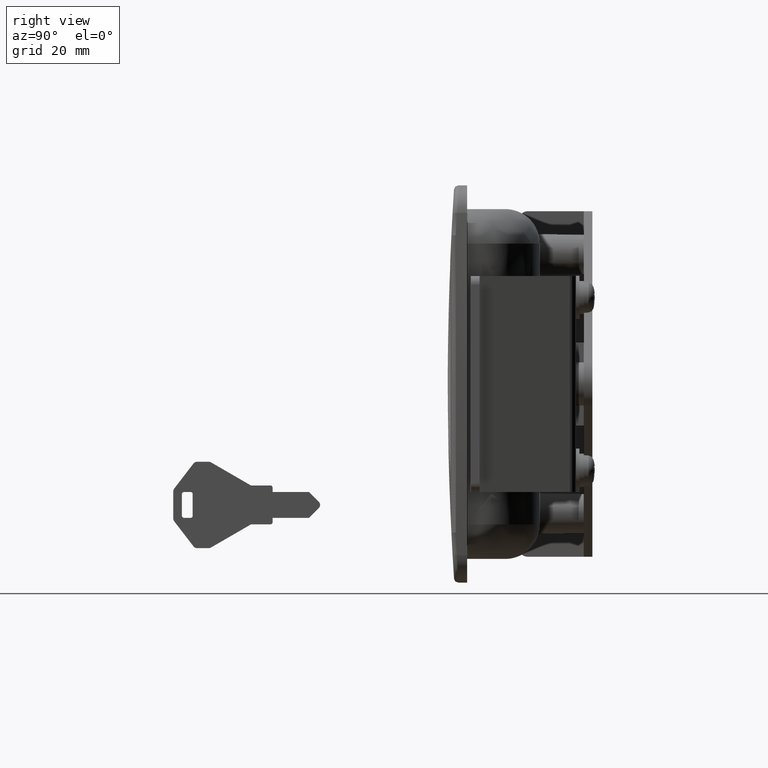
[diagram: clean part render]
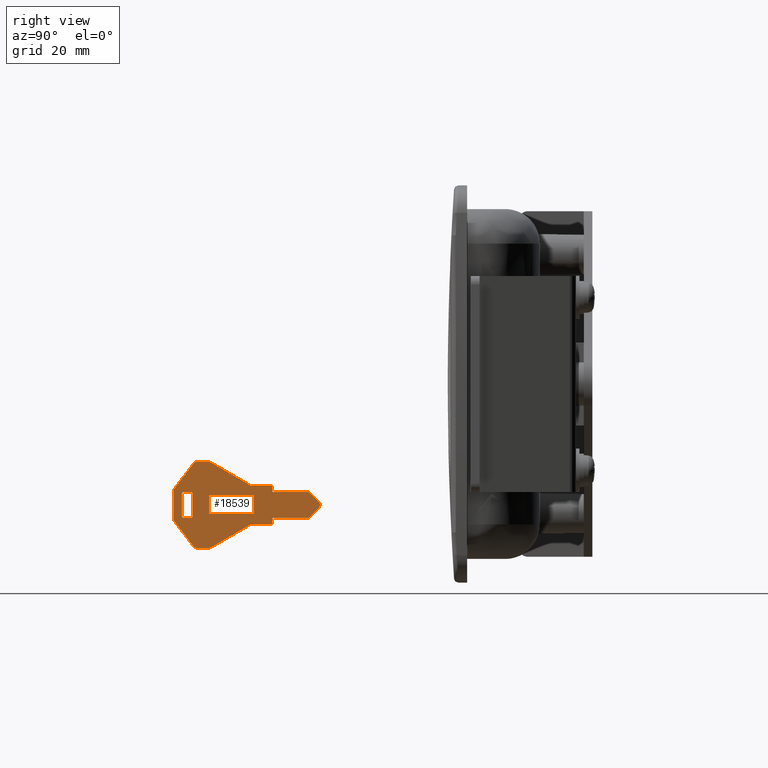
[diagram: same view with one face highlighted and labeled with its STEP entity id]
A machine part, right view. The second image highlights one B-rep face of the part: STEP entity #18539.
In plain terms, the highlighted face is a freeform B-spline surface patch.
Its self-contained STEP definition (entity closure, byte-faithful):
#18255=CARTESIAN_POINT('',(-2.050000000000105,-98.752650437355072,-17.001000038763880));
#18256=CARTESIAN_POINT('',(-2.050000000000105,-61.356083053201090,-17.001000038763880));
#18257=CARTESIAN_POINT('',(-2.050000000000105,-98.752650437355072,-38.999000497677919));
#18258=CARTESIAN_POINT('',(-2.050000000000105,-61.356083053201090,-38.999000497677919));
#18259=B_SPLINE_SURFACE_WITH_KNOTS('',1,1,((#18255,#18257),(#18256,#18258)),.UNSPECIFIED.,.F.,.F.,.U.,(2,2),(2,2),(0.0,37.396567384153983),(0.0,21.998000458914039),.UNSPECIFIED.);
#18260=CARTESIAN_POINT('',(-2.050000000000105,-88.299642658539398,-18.147855169568800));
#18261=VERTEX_POINT('',#18260);
#18262=CARTESIAN_POINT('',(-2.050000000000105,-88.822948676056399,-18.0));
#18263=VERTEX_POINT('',#18262);
#18264=CARTESIAN_POINT('',(-2.050000000000105,-88.299642658539398,-18.147855169568800));
#18265=CARTESIAN_POINT('',(-2.050000000000110,-88.455957832519616,-18.051432423881309));
#18266=CARTESIAN_POINT('',(-2.050000000000103,-88.639315661924797,-17.999747480380851));
#18267=CARTESIAN_POINT('',(-2.050000000000105,-88.822948676056399,-18.0));
#18268=B_SPLINE_CURVE_WITH_KNOTS('',3,(#18264,#18265,#18266,#18267),.UNSPECIFIED.,.F.,.U.,(4,4),(0.000000029010356,0.550753165426561),.UNSPECIFIED.);
#18269=EDGE_CURVE('',#18261,#18263,#18268,.T.);
#18270=ORIENTED_EDGE('',*,*,#18269,.T.);
#18271=CARTESIAN_POINT('',(-2.050000000000105,-91.561948676056389,-18.0));
#18272=VERTEX_POINT('',#18271);
#18273=CARTESIAN_POINT('',(-2.050000000000105,-88.822948676056399,-18.0));
#18274=CARTESIAN_POINT('',(-2.050000000000105,-91.561948676056389,-18.0));
#18275=QUASI_UNIFORM_CURVE('',1,(#18273,#18274),.UNSPECIFIED.,.F.,.U.);
#18276=EDGE_CURVE('',#18263,#18272,#18275,.T.);
#18277=ORIENTED_EDGE('',*,*,#18276,.T.);
#18278=CARTESIAN_POINT('',(-2.050000000000105,-92.372545806396488,-18.414395788706699));
#18279=VERTEX_POINT('',#18278);
#18280=CARTESIAN_POINT('',(-2.050000000000105,-91.561948676056389,-18.0));
#18281=CARTESIAN_POINT('',(-2.050000000000106,-91.729398766783262,-17.999613703292820));
#18282=CARTESIAN_POINT('',(-2.050000000000101,-92.043991722289093,-18.081125507935500));
#18283=CARTESIAN_POINT('',(-2.050000000000110,-92.286225528645971,-18.294508677168469));
#18284=CARTESIAN_POINT('',(-2.050000000000105,-92.372545806396488,-18.414395788706699));
#18285=B_SPLINE_CURVE_WITH_KNOTS('',3,(#18280,#18281,#18282,#18283,#18284),.UNSPECIFIED.,.F.,.U.,(4,1,4),(0.000000110270843,0.502119738241310,0.945205424779409),.UNSPECIFIED.);
#18286=EDGE_CURVE('',#18272,#18279,#18285,.T.);
#18287=ORIENTED_EDGE('',*,*,#18286,.T.);
#18288=CARTESIAN_POINT('',(-2.050000000000105,-96.864945806396605,-24.254395788706749));
#18289=VERTEX_POINT('',#18288);
#18290=CARTESIAN_POINT('',(-2.050000000000105,-92.372545806396488,-18.414395788706699));
#18291=CARTESIAN_POINT('',(-2.050000000000105,-96.864945806396605,-24.254395788706749));
#18292=QUASI_UNIFORM_CURVE('',1,(#18290,#18291),.UNSPECIFIED.,.F.,.U.);
#18293=EDGE_CURVE('',#18279,#18289,#18292,.T.);
#18294=ORIENTED_EDGE('',*,*,#18293,.T.);
#18295=CARTESIAN_POINT('',(-2.050000000000105,-97.054348676056406,-24.840000000000000));
#18296=VERTEX_POINT('',#18295);
#18297=CARTESIAN_POINT('',(-2.050000000000105,-96.864945806396605,-24.254395788706749));
#18298=CARTESIAN_POINT('',(-2.050000000000105,-96.933726562449806,-24.349437920039779));
#18299=CARTESIAN_POINT('',(-2.050000000000109,-97.025604830563807,-24.540235992030059));
#18300=CARTESIAN_POINT('',(-2.050000000000102,-97.054379700925182,-24.748758941509791));
#18301=CARTESIAN_POINT('',(-2.050000000000105,-97.054348676056406,-24.840000000000000));
#18302=B_SPLINE_CURVE_WITH_KNOTS('',3,(#18297,#18298,#18299,#18300,#18301),.UNSPECIFIED.,.F.,.U.,(4,1,4),(0.000000027121419,0.351936498225576,0.625665077524661),.UNSPECIFIED.);
#18303=EDGE_CURVE('',#18289,#18296,#18302,.T.);
#18304=ORIENTED_EDGE('',*,*,#18303,.T.);
#18305=CARTESIAN_POINT('',(-2.050000000000105,-97.054348676056406,-31.160000000000000));
#18306=VERTEX_POINT('',#18305);
#18307=CARTESIAN_POINT('',(-2.050000000000105,-97.054348676056406,-24.840000000000000));
#18308=CARTESIAN_POINT('',(-2.050000000000105,-97.054348676056406,-31.160000000000000));
#18309=QUASI_UNIFORM_CURVE('',1,(#18307,#18308),.UNSPECIFIED.,.F.,.U.);
#18310=EDGE_CURVE('',#18296,#18306,#18309,.T.);
#18311=ORIENTED_EDGE('',*,*,#18310,.T.);
#18312=CARTESIAN_POINT('',(-2.050000000000105,-96.872651613587195,-31.734787180118399));
#18313=VERTEX_POINT('',#18312);
#18314=CARTESIAN_POINT('',(-2.050000000000105,-97.054348676056406,-31.160000000000000));
#18315=CARTESIAN_POINT('',(-2.050000000000102,-97.054815825906289,-31.364241887333758));
#18316=CARTESIAN_POINT('',(-2.050000000000106,-96.990431275418530,-31.567926721917111));
#18317=CARTESIAN_POINT('',(-2.050000000000105,-96.872651613587195,-31.734787180118399));
#18318=B_SPLINE_CURVE_WITH_KNOTS('',3,(#18314,#18315,#18316,#18317),.UNSPECIFIED.,.F.,.U.,(4,4),(0.000000024440869,0.612381397390587),.UNSPECIFIED.);
#18319=EDGE_CURVE('',#18306,#18313,#18318,.T.);
#18320=ORIENTED_EDGE('',*,*,#18319,.T.);
#18321=CARTESIAN_POINT('',(-2.050000000000105,-92.354548676056396,-37.609999999999999));
#18322=VERTEX_POINT('',#18321);
#18323=CARTESIAN_POINT('',(-2.050000000000105,-96.872651613587195,-31.734787180118399));
#18324=CARTESIAN_POINT('',(-2.050000000000105,-92.354548676056396,-37.609999999999999));
#18325=QUASI_UNIFORM_CURVE('',1,(#18323,#18324),.UNSPECIFIED.,.F.,.U.);
#18326=EDGE_CURVE('',#18313,#18322,#18325,.T.);
#18327=ORIENTED_EDGE('',*,*,#18326,.T.);
#18328=CARTESIAN_POINT('',(-2.050000000000105,-91.561948676056389,-38.0));
#18329=VERTEX_POINT('',#18328);
#18330=CARTESIAN_POINT('',(-2.050000000000105,-92.354548676056396,-37.609999999999999));
#18331=CARTESIAN_POINT('',(-2.050000000000109,-92.267506362158059,-37.723458490101770));
#18332=CARTESIAN_POINT('',(-2.050000000000098,-92.028743360765461,-37.924378807424887));
#18333=CARTESIAN_POINT('',(-2.050000000000101,-91.724031520274352,-38.000449113911031));
#18334=CARTESIAN_POINT('',(-2.050000000000105,-91.561948676056389,-38.0));
#18335=B_SPLINE_CURVE_WITH_KNOTS('',3,(#18330,#18331,#18332,#18333,#18334),.UNSPECIFIED.,.F.,.U.,(4,1,4),(0.000000094230241,0.428942376736610,0.915036785654134),.UNSPECIFIED.);
#18336=EDGE_CURVE('',#18322,#18329,#18335,.T.);
#18337=ORIENTED_EDGE('',*,*,#18336,.T.);
#18338=CARTESIAN_POINT('',(-2.050000000000105,-88.822948676056399,-38.0));
#18339=VERTEX_POINT('',#18338);
#18340=CARTESIAN_POINT('',(-2.050000000000105,-91.561948676056389,-38.0));
#18341=CARTESIAN_POINT('',(-2.050000000000105,-88.822948676056399,-38.0));
#18342=QUASI_UNIFORM_CURVE('',1,(#18340,#18341),.UNSPECIFIED.,.F.,.U.);
#18343=EDGE_CURVE('',#18329,#18339,#18342,.T.);
#18344=ORIENTED_EDGE('',*,*,#18343,.T.);
#18345=CARTESIAN_POINT('',(-2.050000000000105,-88.321848676056405,-37.866000000000000));
#18346=VERTEX_POINT('',#18345);
#18347=CARTESIAN_POINT('',(-2.050000000000105,-88.822948676056399,-38.0));
#18348=CARTESIAN_POINT('',(-2.050000000000105,-88.647954888872235,-38.000705535396847));
#18349=CARTESIAN_POINT('',(-2.050000000000105,-88.473166052772470,-37.953833344985973));
#18350=CARTESIAN_POINT('',(-2.050000000000105,-88.321848676056405,-37.866000000000000));
#18351=B_SPLINE_CURVE_WITH_KNOTS('',3,(#18347,#18348,#18349,#18350),.UNSPECIFIED.,.F.,.U.,(4,4),(0.000000023208729,0.524784620495283),.UNSPECIFIED.);
#18352=EDGE_CURVE('',#18339,#18346,#18351,.T.);
#18353=ORIENTED_EDGE('',*,*,#18352,.T.);
#18354=CARTESIAN_POINT('',(-2.050000000000105,-79.054348676056506,-32.500000000000000));
#18355=VERTEX_POINT('',#18354);
#18356=CARTESIAN_POINT('',(-2.050000000000105,-88.321848676056405,-37.866000000000000));
#18357=CARTESIAN_POINT('',(-2.050000000000105,-79.054348676056506,-32.500000000000000));
#18358=QUASI_UNIFORM_CURVE('',1,(#18356,#18357),.UNSPECIFIED.,.F.,.U.);
#18359=EDGE_CURVE('',#18346,#18355,#18358,.T.);
#18360=ORIENTED_EDGE('',*,*,#18359,.T.);
#18361=CARTESIAN_POINT('',(-2.050000000000105,-74.554348676056392,-32.500000000000000));
#18362=VERTEX_POINT('',#18361);
#18363=CARTESIAN_POINT('',(-2.050000000000105,-79.054348676056506,-32.500000000000000));
#18364=CARTESIAN_POINT('',(-2.050000000000105,-74.554348676056392,-32.500000000000000));
#18365=QUASI_UNIFORM_CURVE('',1,(#18363,#18364),.UNSPECIFIED.,.F.,.U.);
#18366=EDGE_CURVE('',#18355,#18362,#18365,.T.);
#18367=ORIENTED_EDGE('',*,*,#18366,.T.);
#18368=CARTESIAN_POINT('',(-2.050000000000105,-74.054348676056392,-32.0));
#18369=VERTEX_POINT('',#18368);
#18370=CARTESIAN_POINT('',(-2.050000000000105,-74.554348676056392,-32.500000000000000));
#18371=CARTESIAN_POINT('',(-2.050000000000107,-74.480691519564246,-32.500113950243481));
#18372=CARTESIAN_POINT('',(-2.050000000000106,-74.341740337808346,-32.468702659633813));
#18373=CARTESIAN_POINT('',(-2.050000000000101,-74.174186353746123,-32.344551427558997));
#18374=CARTESIAN_POINT('',(-2.050000000000111,-74.075644816503356,-32.179983951133117));
#18375=CARTESIAN_POINT('',(-2.050000000000100,-74.054315788029072,-32.057267820464943));
#18376=CARTESIAN_POINT('',(-2.050000000000105,-74.054348676056392,-32.0));
#18377=B_SPLINE_CURVE_WITH_KNOTS('',3,(#18370,#18371,#18372,#18373,#18374,#18375,#18376),.UNSPECIFIED.,.F.,.U.,(4,1,1,1,4),(0.000000378535825,0.220921391118588,0.417262226251014,0.613659672706480,0.785476941711680),.UNSPECIFIED.);
#18378=EDGE_CURVE('',#18362,#18369,#18377,.T.);
#18379=ORIENTED_EDGE('',*,*,#18378,.T.);
#18380=CARTESIAN_POINT('',(-2.050000000000105,-74.054348676056492,-31.0));
#18381=VERTEX_POINT('',#18380);
#18382=CARTESIAN_POINT('',(-2.050000000000105,-74.054348676056392,-32.0));
#18383=CARTESIAN_POINT('',(-2.050000000000105,-74.054348676056492,-31.0));
#18384=QUASI_UNIFORM_CURVE('',1,(#18382,#18383),.UNSPECIFIED.,.F.,.U.);
#18385=EDGE_CURVE('',#18369,#18381,#18384,.T.);
#18386=ORIENTED_EDGE('',*,*,#18385,.T.);
#18387=CARTESIAN_POINT('',(-2.050000000000105,-65.640048676056395,-31.0));
#18388=VERTEX_POINT('',#18387);
#18389=CARTESIAN_POINT('',(-2.050000000000105,-74.054348676056492,-31.0));
#18390=CARTESIAN_POINT('',(-2.050000000000105,-65.640048676056395,-31.0));
#18391=QUASI_UNIFORM_CURVE('',1,(#18389,#18390),.UNSPECIFIED.,.F.,.U.);
#18392=EDGE_CURVE('',#18381,#18388,#18391,.T.);
#18393=ORIENTED_EDGE('',*,*,#18392,.T.);
#18394=CARTESIAN_POINT('',(-2.050000000000105,-63.338307461306997,-28.698058005311950));
#18395=VERTEX_POINT('',#18394);
#18396=CARTESIAN_POINT('',(-2.050000000000105,-65.640048676056395,-31.0));
#18397=CARTESIAN_POINT('',(-2.050000000000105,-63.338307461306997,-28.698058005311950));
#18398=QUASI_UNIFORM_CURVE('',1,(#18396,#18397),.UNSPECIFIED.,.F.,.U.);
#18399=EDGE_CURVE('',#18388,#18395,#18398,.T.);
#18400=ORIENTED_EDGE('',*,*,#18399,.T.);
#18401=CARTESIAN_POINT('',(-2.050000000000105,-63.356228216140387,-27.284019676634450));
#18402=VERTEX_POINT('',#18401);
#18403=CARTESIAN_POINT('',(-2.050000000000105,-63.338307461306997,-28.698058005311950));
#18404=CARTESIAN_POINT('',(-2.050000000000106,-63.223780956213439,-28.581084957990850));
#18405=CARTESIAN_POINT('',(-2.050000000000110,-63.097039088351160,-28.362362372216840));
#18406=CARTESIAN_POINT('',(-2.050000000000102,-63.046211049471992,-28.044898928645932));
#18407=CARTESIAN_POINT('',(-2.050000000000101,-63.065642660709010,-27.782220083327609));
#18408=CARTESIAN_POINT('',(-2.050000000000122,-63.160677105262053,-27.517051205666590));
#18409=CARTESIAN_POINT('',(-2.050000000000094,-63.285912441073101,-27.352526992389190));
#18410=CARTESIAN_POINT('',(-2.050000000000105,-63.356228216140387,-27.284019676634450));
#18411=B_SPLINE_CURVE_WITH_KNOTS('',3,(#18403,#18404,#18405,#18406,#18407,#18408,#18409,#18410),.UNSPECIFIED.,.F.,.U.,(4,1,1,1,1,4),(0.000000306657854,0.490879351851221,0.736330826735464,0.957183011896125,1.276269308332446,1.570786579639568),.UNSPECIFIED.);
#18412=EDGE_CURVE('',#18395,#18402,#18411,.T.);
#18413=ORIENTED_EDGE('',*,*,#18412,.T.);
#18414=CARTESIAN_POINT('',(-2.050000000000105,-65.640048676056395,-25.0));
#18415=VERTEX_POINT('',#18414);
#18416=CARTESIAN_POINT('',(-2.050000000000105,-63.356228216140387,-27.284019676634450));
#18417=CARTESIAN_POINT('',(-2.050000000000105,-65.640048676056395,-25.0));
#18418=QUASI_UNIFORM_CURVE('',1,(#18416,#18417),.UNSPECIFIED.,.F.,.U.);
#18419=EDGE_CURVE('',#18402,#18415,#18418,.T.);
#18420=ORIENTED_EDGE('',*,*,#18419,.T.);
#18421=CARTESIAN_POINT('',(-2.050000000000105,-74.054348676056492,-25.0));
#18422=VERTEX_POINT('',#18421);
#18423=CARTESIAN_POINT('',(-2.050000000000105,-65.640048676056395,-25.0));
#18424=CARTESIAN_POINT('',(-2.050000000000105,-74.054348676056492,-25.0));
#18425=QUASI_UNIFORM_CURVE('',1,(#18423,#18424),.UNSPECIFIED.,.F.,.U.);
#18426=EDGE_CURVE('',#18415,#18422,#18425,.T.);
#18427=ORIENTED_EDGE('',*,*,#18426,.T.);
#18428=CARTESIAN_POINT('',(-2.050000000000105,-74.054348676056492,-24.0));
#18429=VERTEX_POINT('',#18428);
#18430=CARTESIAN_POINT('',(-2.050000000000105,-74.054348676056492,-25.0));
#18431=CARTESIAN_POINT('',(-2.050000000000105,-74.054348676056492,-24.0));
#18432=QUASI_UNIFORM_CURVE('',1,(#18430,#18431),.UNSPECIFIED.,.F.,.U.);
#18433=EDGE_CURVE('',#18422,#18429,#18432,.T.);
#18434=ORIENTED_EDGE('',*,*,#18433,.T.);
#18435=CARTESIAN_POINT('',(-2.050000000000105,-74.554348676056392,-23.500000000000000));
#18436=VERTEX_POINT('',#18435);
#18437=CARTESIAN_POINT('',(-2.050000000000105,-74.054348676056492,-24.0));
#18438=CARTESIAN_POINT('',(-2.050000000000106,-74.054237184002503,-23.926345759821270));
#18439=CARTESIAN_POINT('',(-2.050000000000108,-74.081976812988927,-23.803730203466870));
#18440=CARTESIAN_POINT('',(-2.050000000000103,-74.187642373025000,-23.645531928958839));
#18441=CARTESIAN_POINT('',(-2.050000000000108,-74.341719806141512,-23.531290552471500));
#18442=CARTESIAN_POINT('',(-2.050000000000104,-74.480695366629831,-23.499887141924098));
#18443=CARTESIAN_POINT('',(-2.050000000000105,-74.554348676056392,-23.500000000000000));
#18444=B_SPLINE_CURVE_WITH_KNOTS('',3,(#18437,#18438,#18439,#18440,#18441,#18442,#18443),.UNSPECIFIED.,.F.,.U.,(4,1,1,1,4),(0.000000378534883,0.220921391118537,0.368215093996019,0.564555929128732,0.785476941711496),.UNSPECIFIED.);
#18445=EDGE_CURVE('',#18429,#18436,#18444,.T.);
#18446=ORIENTED_EDGE('',*,*,#18445,.T.);
#18447=CARTESIAN_POINT('',(-2.050000000000105,-79.054348676056506,-23.500000000000000));
#18448=VERTEX_POINT('',#18447);
#18449=CARTESIAN_POINT('',(-2.050000000000105,-74.554348676056392,-23.500000000000000));
#18450=CARTESIAN_POINT('',(-2.050000000000105,-79.054348676056506,-23.500000000000000));
#18451=QUASI_UNIFORM_CURVE('',1,(#18449,#18450),.UNSPECIFIED.,.F.,.U.);
#18452=EDGE_CURVE('',#18436,#18448,#18451,.T.);
#18453=ORIENTED_EDGE('',*,*,#18452,.T.);
#18454=CARTESIAN_POINT('',(-2.050000000000105,-79.054348676056506,-23.500000000000000));
#18455=CARTESIAN_POINT('',(-2.050000000000105,-88.299642658539398,-18.147855169568800));
#18456=QUASI_UNIFORM_CURVE('',1,(#18454,#18455),.UNSPECIFIED.,.F.,.U.);
#18457=EDGE_CURVE('',#18448,#18261,#18456,.T.);
#18458=ORIENTED_EDGE('',*,*,#18457,.T.);
#18459=EDGE_LOOP('',(#18270,#18277,#18287,#18294,#18304,#18311,#18320,#18327,#18337,#18344,#18353,#18360,#18367,#18379,#18386,#18393,#18400,#18413,#18420,#18427,#18434,#18446,#18453,#18458));
#18460=FACE_OUTER_BOUND('',#18459,.T.);
#18461=CARTESIAN_POINT('',(-2.050000000000105,-93.054348676056406,-25.0));
#18462=VERTEX_POINT('',#18461);
#18463=CARTESIAN_POINT('',(-2.050000000000105,-94.554348676056406,-25.0));
#18464=VERTEX_POINT('',#18463);
#18465=CARTESIAN_POINT('',(-2.050000000000105,-93.054348676056406,-25.0));
#18466=CARTESIAN_POINT('',(-2.050000000000105,-94.554348676056406,-25.0));
#18467=QUASI_UNIFORM_CURVE('',1,(#18465,#18466),.UNSPECIFIED.,.F.,.U.);
#18468=EDGE_CURVE('',#18462,#18464,#18467,.T.);
#18469=ORIENTED_EDGE('',*,*,#18468,.F.);
#18470=CARTESIAN_POINT('',(-2.050000000000105,-92.554348676056406,-25.500000000000000));
#18471=VERTEX_POINT('',#18470);
#18472=CARTESIAN_POINT('',(-2.050000000000105,-92.554348676056406,-25.500000000000000));
#18473=CARTESIAN_POINT('',(-2.050000000000106,-92.554315884366318,-25.442733168346720));
#18474=CARTESIAN_POINT('',(-2.050000000000105,-92.575644367349597,-25.320015755666599));
#18475=CARTESIAN_POINT('',(-2.050000000000105,-92.674186657405784,-25.155448577822099));
#18476=CARTESIAN_POINT('',(-2.050000000000102,-92.841739885242447,-25.031297418787830));
#18477=CARTESIAN_POINT('',(-2.050000000000107,-92.980691939558696,-24.999885791673300));
#18478=CARTESIAN_POINT('',(-2.050000000000105,-93.054348676056406,-25.0));
#18479=B_SPLINE_CURVE_WITH_KNOTS('',3,(#18472,#18473,#18474,#18475,#18476,#18477,#18478),.UNSPECIFIED.,.F.,.U.,(4,1,1,1,4),(0.000000378535974,0.171817647541160,0.368215093996624,0.564555929128946,0.785476941711612),.UNSPECIFIED.);
#18480=EDGE_CURVE('',#18471,#18462,#18479,.T.);
#18481=ORIENTED_EDGE('',*,*,#18480,.F.);
#18482=CARTESIAN_POINT('',(-2.050000000000105,-92.554348676056406,-30.500000000000000));
#18483=VERTEX_POINT('',#18482);
#18484=CARTESIAN_POINT('',(-2.050000000000105,-92.554348676056406,-30.500000000000000));
#18485=CARTESIAN_POINT('',(-2.050000000000105,-92.554348676056406,-25.500000000000000));
#18486=QUASI_UNIFORM_CURVE('',1,(#18484,#18485),.UNSPECIFIED.,.F.,.U.);
#18487=EDGE_CURVE('',#18483,#18471,#18486,.T.);
#18488=ORIENTED_EDGE('',*,*,#18487,.F.);
#18489=CARTESIAN_POINT('',(-2.050000000000105,-93.054348676056406,-31.0));
#18490=VERTEX_POINT('',#18489);
#18491=CARTESIAN_POINT('',(-2.050000000000105,-93.054348676056406,-31.0));
#18492=CARTESIAN_POINT('',(-2.050000000000104,-92.980692785177482,-31.000104013396420));
#18493=CARTESIAN_POINT('',(-2.050000000000106,-92.841737967126491,-30.968715635068939));
#18494=CARTESIAN_POINT('',(-2.050000000000104,-92.674187477866028,-30.844544952047791));
#18495=CARTESIAN_POINT('',(-2.050000000000111,-92.575643934389049,-30.679987923043821));
#18496=CARTESIAN_POINT('',(-2.050000000000099,-92.554316373202539,-30.557265225700760));
#18497=CARTESIAN_POINT('',(-2.050000000000105,-92.554348676056406,-30.500000000000000));
#18498=B_SPLINE_CURVE_WITH_KNOTS('',3,(#18491,#18492,#18493,#18494,#18495,#18496,#18497),.UNSPECIFIED.,.F.,.U.,(4,1,1,1,4),(0.000000378538746,0.220921391120985,0.417262226252677,0.613659672707331,0.785476941711554),.UNSPECIFIED.);
#18499=EDGE_CURVE('',#18490,#18483,#18498,.T.);
#18500=ORIENTED_EDGE('',*,*,#18499,.F.);
#18501=CARTESIAN_POINT('',(-2.050000000000105,-94.554348676056406,-31.0));
#18502=VERTEX_POINT('',#18501);
#18503=CARTESIAN_POINT('',(-2.050000000000105,-94.554348676056406,-31.0));
#18504=CARTESIAN_POINT('',(-2.050000000000105,-93.054348676056406,-31.0));
#18505=QUASI_UNIFORM_CURVE('',1,(#18503,#18504),.UNSPECIFIED.,.F.,.U.);
#18506=EDGE_CURVE('',#18502,#18490,#18505,.T.);
#18507=ORIENTED_EDGE('',*,*,#18506,.F.);
#18508=CARTESIAN_POINT('',(-2.050000000000105,-95.054348676056406,-30.500000000000000));
#18509=VERTEX_POINT('',#18508);
#18510=CARTESIAN_POINT('',(-2.050000000000105,-95.054348676056406,-30.500000000000000));
#18511=CARTESIAN_POINT('',(-2.050000000000109,-95.054451602499910,-30.573649593925492));
#18512=CARTESIAN_POINT('',(-2.050000000000100,-95.023070952499239,-30.712633185153759));
#18513=CARTESIAN_POINT('',(-2.050000000000110,-94.908812553420020,-30.866706294467221));
#18514=CARTESIAN_POINT('',(-2.050000000000099,-94.750616511741185,-30.972365973825760));
#18515=CARTESIAN_POINT('',(-2.050000000000106,-94.628004610533068,-31.000118623638841));
#18516=CARTESIAN_POINT('',(-2.050000000000105,-94.554348676056406,-31.0));
#18517=B_SPLINE_CURVE_WITH_KNOTS('',3,(#18510,#18511,#18512,#18513,#18514,#18515,#18516),.UNSPECIFIED.,.F.,.U.,(4,1,1,1,4),(0.000000378537671,0.220921391120155,0.417262226252052,0.564555929128945,0.785476941711605),.UNSPECIFIED.);
#18518=EDGE_CURVE('',#18509,#18502,#18517,.T.);
#18519=ORIENTED_EDGE('',*,*,#18518,.F.);
#18520=CARTESIAN_POINT('',(-2.050000000000105,-95.054348676056406,-25.500000000000000));
#18521=VERTEX_POINT('',#18520);
#18522=CARTESIAN_POINT('',(-2.050000000000105,-95.054348676056406,-25.500000000000000));
#18523=CARTESIAN_POINT('',(-2.050000000000105,-95.054348676056406,-30.500000000000000));
#18524=QUASI_UNIFORM_CURVE('',1,(#18522,#18523),.UNSPECIFIED.,.F.,.U.);
#18525=EDGE_CURVE('',#18521,#18509,#18524,.T.);
#18526=ORIENTED_EDGE('',*,*,#18525,.F.);
#18527=CARTESIAN_POINT('',(-2.050000000000105,-94.554348676056406,-25.0));
#18528=CARTESIAN_POINT('',(-2.050000000000106,-94.628004893815373,-24.999890122679599));
#18529=CARTESIAN_POINT('',(-2.050000000000105,-94.734263976430029,-25.023930364327640));
#18530=CARTESIAN_POINT('',(-2.050000000000104,-94.882360854016014,-25.112692768078489));
#18531=CARTESIAN_POINT('',(-2.050000000000111,-95.011205551158483,-25.254779608255319));
#18532=CARTESIAN_POINT('',(-2.050000000000100,-95.054600544646718,-25.409955061185169));
#18533=CARTESIAN_POINT('',(-2.050000000000105,-95.054348676056406,-25.500000000000000));
#18534=B_SPLINE_CURVE_WITH_KNOTS('',3,(#18527,#18528,#18529,#18530,#18531,#18532,#18533),.UNSPECIFIED.,.F.,.U.,(4,1,1,1,4),(0.000000378535350,0.220921391118586,0.319128283928488,0.515464186318132,0.785476941711657),.UNSPECIFIED.);
#18535=EDGE_CURVE('',#18464,#18521,#18534,.T.);
#18536=ORIENTED_EDGE('',*,*,#18535,.F.);
#18537=EDGE_LOOP('',(#18469,#18481,#18488,#18500,#18507,#18519,#18526,#18536));
#18538=FACE_BOUND('',#18537,.T.);
#18539=ADVANCED_FACE('',(#18460,#18538),#18259,.F.);